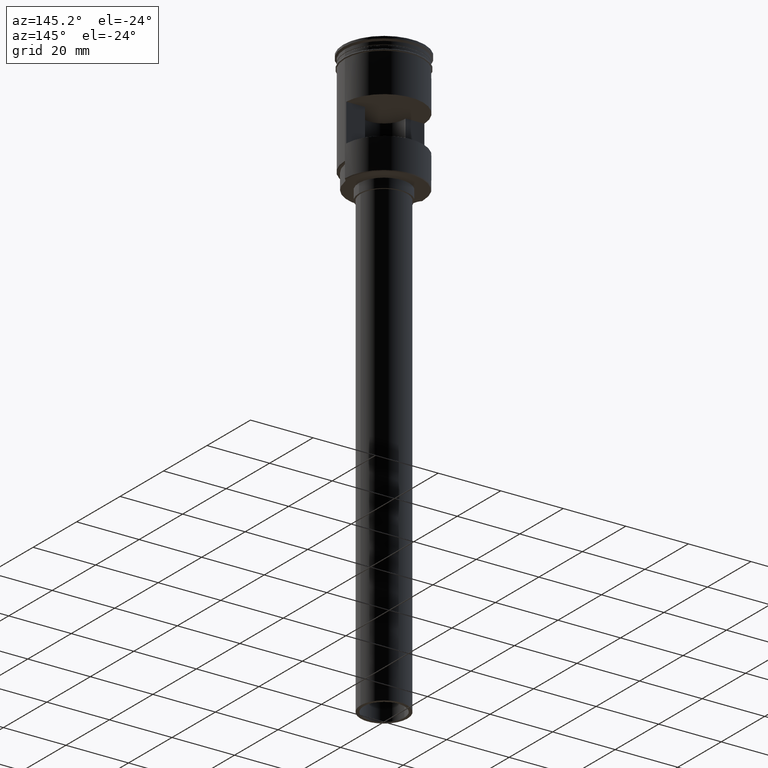
[diagram: clean part render]
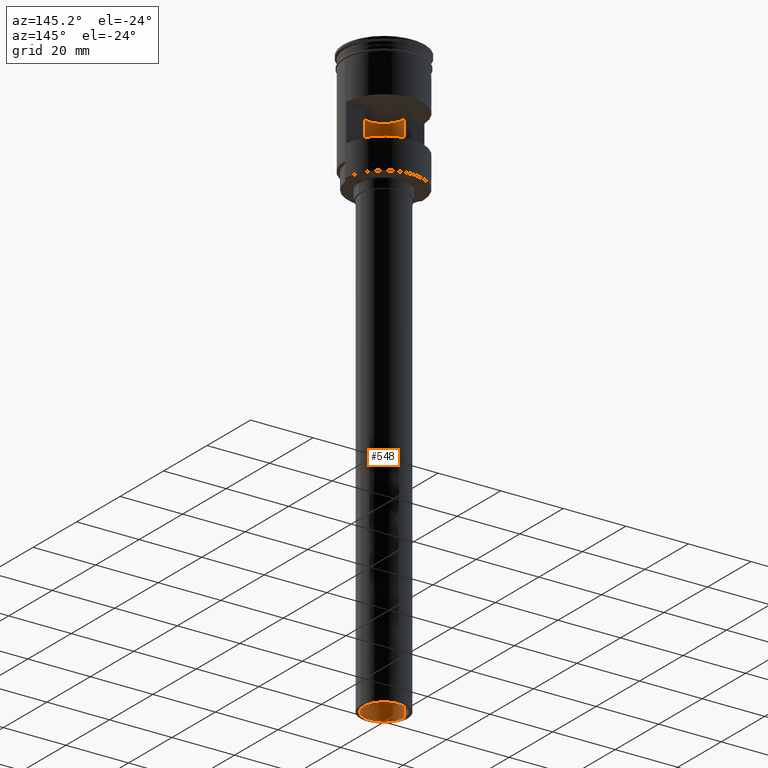
[diagram: same view with one face highlighted and labeled with its STEP entity id]
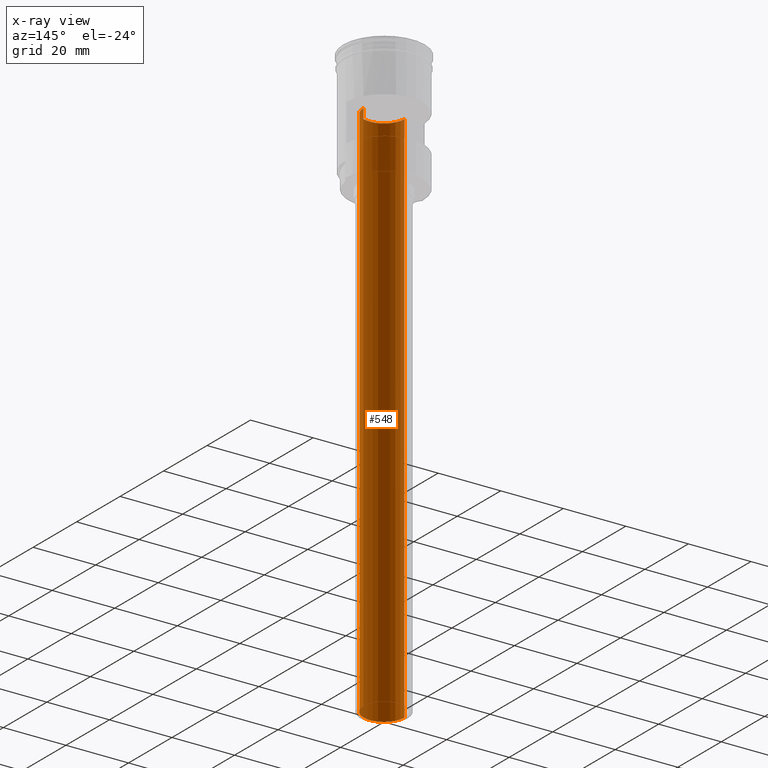
[diagram: x-ray of the same camera — body ghosted, the highlighted face saturated]
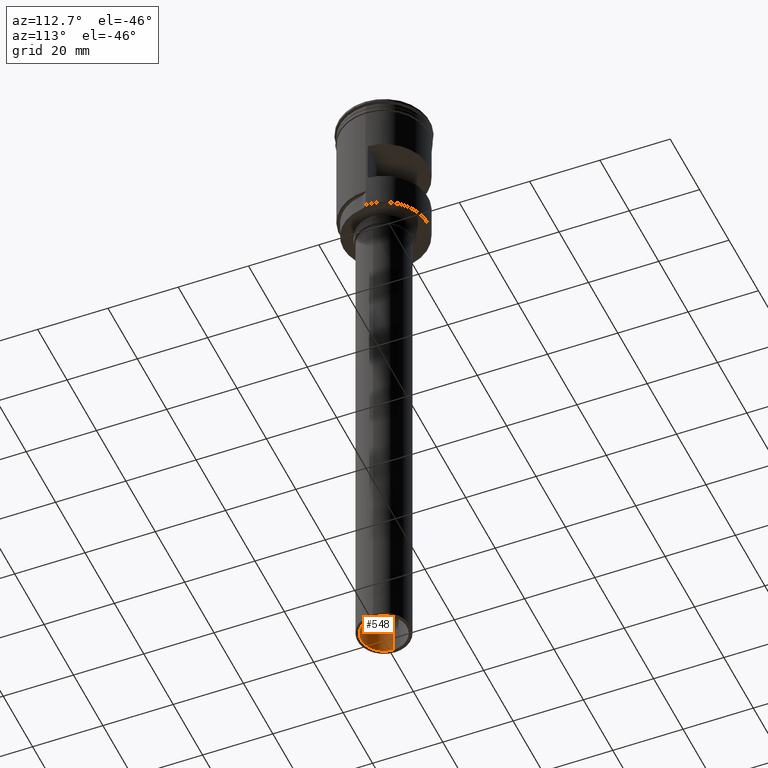
[diagram: same view with one face highlighted and labeled with its STEP entity id]
A machine part, auxiliary view. The second image highlights one B-rep face of the part: STEP entity #548.
The next image is the same camera in x-ray: the body ghosted, the highlighted face saturated — about 3% of this face is hidden behind the body in this view.
A second angle (auxiliary view) of the same face is appended — the face is thin or edge-on in the first view.
In plain terms, the highlighted cylindrical surface (edge-blend (fillet) strip) has radius 6.5 mm, axis along (-0, -0, -1).
Its self-contained STEP definition (entity closure, byte-faithful):
#1 = DIRECTION ( 'NONE',  ( 0.000000000000000000, 0.000000000000000000, -1.000000000000000000 ) ) ;
#22 = CARTESIAN_POINT ( 'NONE',  ( 6.500000000000000888, 7.960204194457794491E-16, -16.50000000000000000 ) ) ;
#25 = EDGE_CURVE ( 'NONE', #504, #436, #431, .T. ) ;
#35 = CIRCLE ( 'NONE', #255, 6.500000000000000888 ) ;
#85 = CIRCLE ( 'NONE', #977, 6.500000000000000888 ) ;
#157 = LINE ( 'NONE', #1475, #231 ) ;
#182 = CARTESIAN_POINT ( 'NONE',  ( 0.000000000000000000, 0.000000000000000000, 1.884776310850211356 ) ) ;
#231 = VECTOR ( 'NONE', #758, 1000.000000000000000 ) ;
#255 = AXIS2_PLACEMENT_3D ( 'NONE', #1116, #1, #1350 ) ;
#292 = CARTESIAN_POINT ( 'NONE',  ( -6.500000000000000888, 0.000000000000000000, -188.5000000000000000 ) ) ;
#328 = CARTESIAN_POINT ( 'NONE',  ( -6.500000000000000888, 0.000000000000000000, -16.50000000000000000 ) ) ;
#377 = ORIENTED_EDGE ( 'NONE', *, *, #25, .F. ) ;
#385 = DIRECTION ( 'NONE',  ( -0.000000000000000000, 0.000000000000000000, -1.000000000000000000 ) ) ;
#402 = VERTEX_POINT ( 'NONE', #22 ) ;
#423 = ORIENTED_EDGE ( 'NONE', *, *, #850, .F. ) ;
#431 = LINE ( 'NONE', #528, #1199 ) ;
#436 = VERTEX_POINT ( 'NONE', #292 ) ;
#504 = VERTEX_POINT ( 'NONE', #328 ) ;
#516 = CARTESIAN_POINT ( 'NONE',  ( 0.000000000000000000, 0.000000000000000000, -16.50000000000000000 ) ) ;
#528 = CARTESIAN_POINT ( 'NONE',  ( -6.500000000000000888, 0.000000000000000000, 1.884776310850211356 ) ) ;
#548 = ADVANCED_FACE ( 'NONE', ( #580 ), #1285, .F. ) ;
#580 = FACE_OUTER_BOUND ( 'NONE', #966, .T. ) ;
#605 = CARTESIAN_POINT ( 'NONE',  ( 6.500000000000000888, 7.960204194457794491E-16, -188.5000000000000000 ) ) ;
#676 = DIRECTION ( 'NONE',  ( -0.000000000000000000, -0.000000000000000000, -1.000000000000000000 ) ) ;
#758 = DIRECTION ( 'NONE',  ( -0.000000000000000000, -0.000000000000000000, -1.000000000000000000 ) ) ;
#823 = EDGE_CURVE ( 'NONE', #402, #1585, #157, .T. ) ;
#850 = EDGE_CURVE ( 'NONE', #402, #504, #85, .T. ) ;
#966 = EDGE_LOOP ( 'NONE', ( #423, #1581, #1176, #377 ) ) ;
#977 = AXIS2_PLACEMENT_3D ( 'NONE', #516, #385, #1387 ) ;
#999 = DIRECTION ( 'NONE',  ( -0.000000000000000000, -0.000000000000000000, -1.000000000000000000 ) ) ;
#1035 = DIRECTION ( 'NONE',  ( -1.000000000000000000, 0.000000000000000000, 0.000000000000000000 ) ) ;
#1116 = CARTESIAN_POINT ( 'NONE',  ( 0.000000000000000000, 0.000000000000000000, -188.5000000000000000 ) ) ;
#1176 = ORIENTED_EDGE ( 'NONE', *, *, #1317, .T. ) ;
#1199 = VECTOR ( 'NONE', #999, 1000.000000000000000 ) ;
#1285 = CYLINDRICAL_SURFACE ( 'NONE', #1563, 6.500000000000000888 ) ;
#1317 = EDGE_CURVE ( 'NONE', #1585, #436, #35, .T. ) ;
#1350 = DIRECTION ( 'NONE',  ( -1.000000000000000000, 0.000000000000000000, 0.000000000000000000 ) ) ;
#1387 = DIRECTION ( 'NONE',  ( 1.000000000000000000, 0.000000000000000000, 0.000000000000000000 ) ) ;
#1475 = CARTESIAN_POINT ( 'NONE',  ( 6.500000000000000888, 7.960204194457794491E-16, 1.884776310850211356 ) ) ;
#1563 = AXIS2_PLACEMENT_3D ( 'NONE', #182, #676, #1035 ) ;
#1581 = ORIENTED_EDGE ( 'NONE', *, *, #823, .T. ) ;
#1585 = VERTEX_POINT ( 'NONE', #605 ) ;